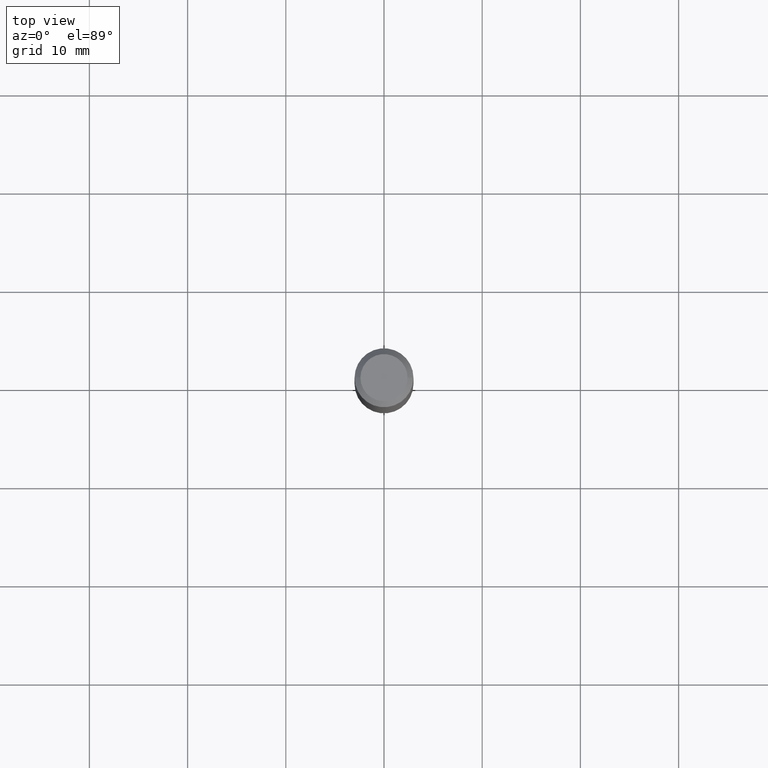
[diagram: clean part render]
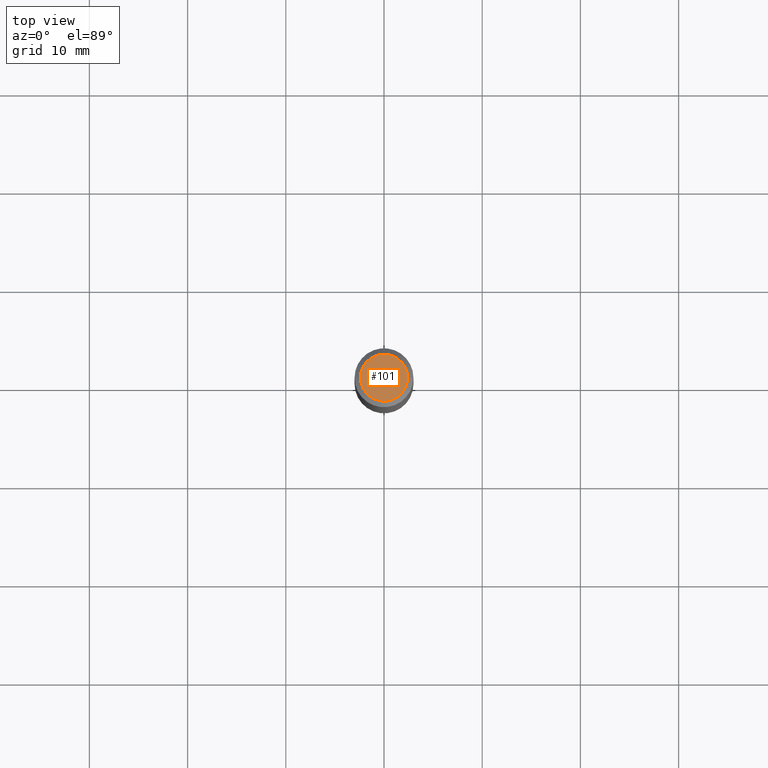
[diagram: same view with one face highlighted and labeled with its STEP entity id]
A machine part, top view. The second image highlights one B-rep face of the part: STEP entity #101.
In plain terms, the highlighted planar face has unit normal (0, -0, -1).
Its self-contained STEP definition (entity closure, byte-faithful):
#4 = VERTEX_POINT ( 'NONE', #461 ) ;
#13 = EDGE_CURVE ( 'NONE', #319, #4, #170, .T. ) ;
#16 = FACE_OUTER_BOUND ( 'NONE', #181, .T. ) ;
#17 = AXIS2_PLACEMENT_3D ( 'NONE', #338, #490, #152 ) ;
#37 = DIRECTION ( 'NONE',  ( 1.000000000000000000, -6.982962677686267499E-15, 4.875432709231658792E-29 ) ) ;
#51 = EDGE_CURVE ( 'NONE', #4, #319, #237, .T. ) ;
#101 = ADVANCED_FACE ( 'NONE', ( #16 ), #435, .F. ) ;
#102 = CARTESIAN_POINT ( 'NONE',  ( 0.09447999999999998066, -7.704367267948738690E-16, -1.928573779296752193E-17 ) ) ;
#108 = CARTESIAN_POINT ( 'NONE',  ( 4.716267017698007905E-46, -6.733579360998555036E-32, -1.928573779297252010E-17 ) ) ;
#152 = DIRECTION ( 'NONE',  ( 1.000000000000000000, -6.982962677686267499E-15, 4.875432709231658792E-29 ) ) ;
#170 = CIRCLE ( 'NONE', #397, 0.09447999999999998066 ) ;
#181 = EDGE_LOOP ( 'NONE', ( #455, #446 ) ) ;
#208 = CARTESIAN_POINT ( 'NONE',  ( 2.358133508849003952E-46, -3.366789680499277518E-32, -9.642868896486260050E-18 ) ) ;
#237 = CIRCLE ( 'NONE', #17, 0.09447999999999998066 ) ;
#269 = DIRECTION ( 'NONE',  ( -2.445468806185136597E-29, 3.491481338843145583E-15, 1.000000000000000000 ) ) ;
#316 = DIRECTION ( 'NONE',  ( -1.000000000000000000, 6.982962677686265922E-15, -4.876176775795935793E-29 ) ) ;
#319 = VERTEX_POINT ( 'NONE', #102 ) ;
#338 = CARTESIAN_POINT ( 'NONE',  ( 4.716267017698007905E-46, -6.733579360998555036E-32, -1.928573779297252010E-17 ) ) ;
#397 = AXIS2_PLACEMENT_3D ( 'NONE', #108, #269, #37 ) ;
#414 = AXIS2_PLACEMENT_3D ( 'NONE', #208, #469, #316 ) ;
#435 = PLANE ( 'NONE',  #414 ) ;
#446 = ORIENTED_EDGE ( 'NONE', *, *, #13, .T. ) ;
#455 = ORIENTED_EDGE ( 'NONE', *, *, #51, .T. ) ;
#461 = CARTESIAN_POINT ( 'NONE',  ( -0.09447999999999998066, 7.009847083995354710E-16, -1.928573779297727792E-17 ) ) ;
#469 = DIRECTION ( 'NONE',  ( 2.438088387897960049E-29, -3.491481338843145188E-15, -1.000000000000000000 ) ) ;
#490 = DIRECTION ( 'NONE',  ( -2.445468806185136597E-29, 3.491481338843145583E-15, 1.000000000000000000 ) ) ;